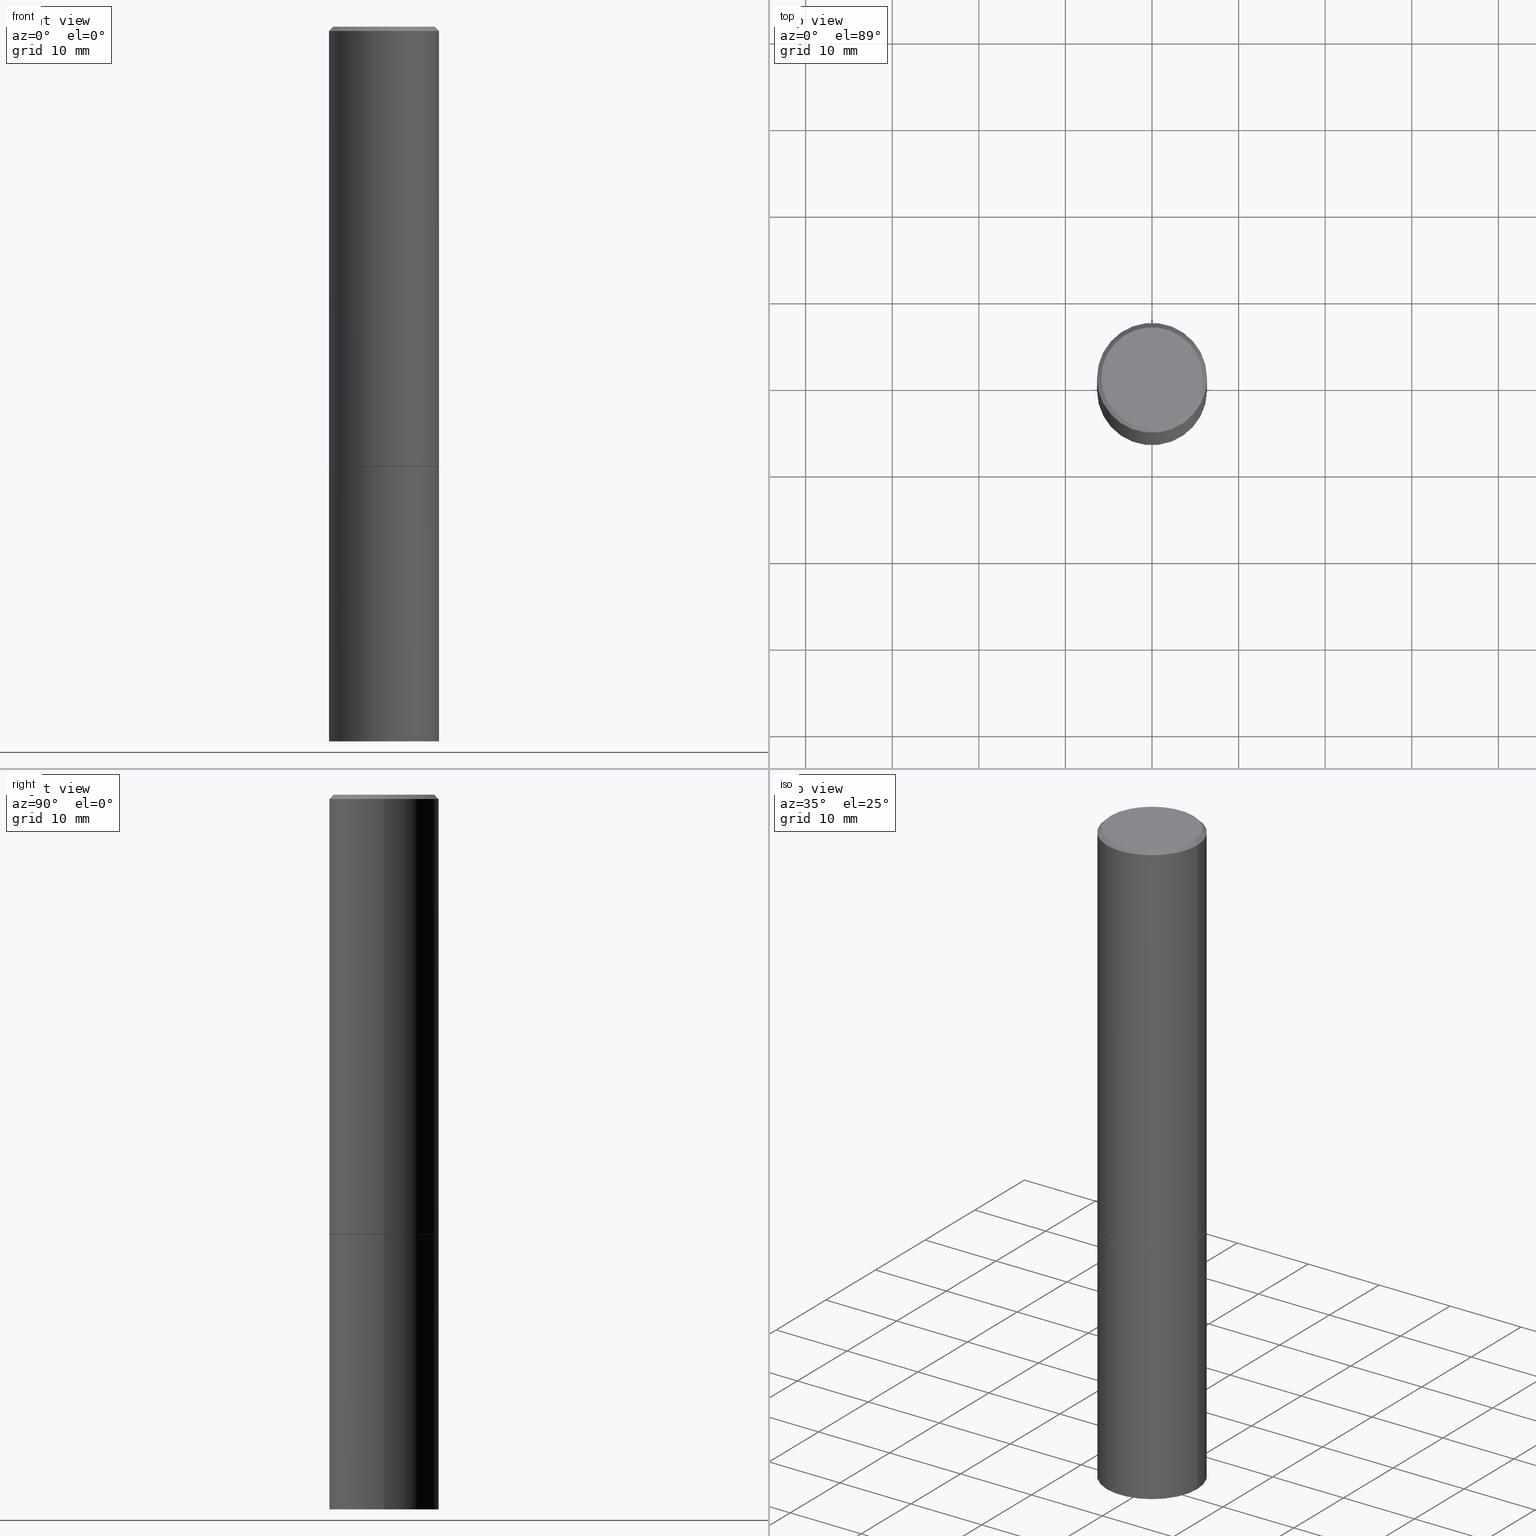
[diagram: canonical four-view strip — front | top / right | iso, engineering-drawing reading convention]
A machine part, canonical four-view strip (front | top / right | iso — engineering-drawing reading convention). The complete STEP part file that produces these views, byte-faithful:
ISO-10303-21;
HEADER;
FILE_DESCRIPTION (( 'STEP AP203' ),
    '1' );
FILE_NAME ('77342.STEP',
    '2024-05-03T15:04:56',
    ( '' ),
    ( '' ),
    'SwSTEP 2.0',
    'SolidWorks 2023',
    '' );
FILE_SCHEMA (( 'CONFIG_CONTROL_DESIGN' ));
ENDSEC;

DATA;
#1 = LOCAL_TIME ( 11, 4, 56.00000000000000000, #59 ) ;
#2 = ORIENTED_EDGE ( 'NONE', *, *, #110, .T. ) ;
#3 = CARTESIAN_POINT ( 'NONE',  ( 0.2499999999999998057, -1.784954126219744611E-15, -0.02000000000000006287 ) ) ;
#4 = CC_DESIGN_PERSON_AND_ORGANIZATION_ASSIGNMENT ( #97, #192, ( #108 ) ) ;
#5 = EDGE_LOOP ( 'NONE', ( #309, #128, #268, #63 ) ) ;
#6 = DIRECTION ( 'NONE',  ( 1.000000000000000000, -6.982962677686266711E-15, 0.000000000000000000 ) ) ;
#7 = DIRECTION ( 'NONE',  ( -1.000000000000000000, 6.982962677686265922E-15, -4.876176775795935793E-29 ) ) ;
#8 = CARTESIAN_POINT ( 'NONE',  ( 0.2499999999999999167, -1.745740669421566283E-15, 1.219044193948983668E-29 ) ) ;
#9 = CARTESIAN_POINT ( 'NONE',  ( 7.947773620101693940E-29, -1.134731435124022443E-14, -3.250000000000000000 ) ) ;
#10 = EDGE_LOOP ( 'NONE', ( #321, #339, #132, #264 ) ) ;
#11 = ORIENTED_EDGE ( 'NONE', *, *, #137, .T. ) ;
#12 = ADVANCED_FACE ( 'NONE', ( #255 ), #103, .F. ) ;
#13 = DIRECTION ( 'NONE',  ( 1.000000000000000000, -6.982962677686266711E-15, 4.876176775795935793E-29 ) ) ;
#14 =( NAMED_UNIT ( * ) PLANE_ANGLE_UNIT ( ) SI_UNIT ( $, .RADIAN. ) );
#15 = APPLICATION_PROTOCOL_DEFINITION ( 'international standard', 'config_control_design', 1994, #363 ) ;
#16 = CARTESIAN_POINT ( 'NONE',  ( 4.890937612370273194E-29, -6.982962677686291165E-15, -2.000000000000000000 ) ) ;
#17 = ADVANCED_FACE ( 'NONE', ( #133 ), #226, .T. ) ;
#18 = CC_DESIGN_PERSON_AND_ORGANIZATION_ASSIGNMENT ( #197, #163, ( #49 ) ) ;
#19 = AXIS2_PLACEMENT_3D ( 'NONE', #155, #130, #299 ) ;
#20 = CARTESIAN_POINT ( 'NONE',  ( 1.745740669421645958E-15, 0.2499999999999886480, -3.250000000000001332 ) ) ;
#21 = SECURITY_CLASSIFICATION_LEVEL ( 'unclassified' ) ;
#22 = EDGE_CURVE ( 'NONE', #348, #157, #161, .T. ) ;
#23 = ORGANIZATION ( 'UNSPECIFIED', 'UNSPECIFIED', '' ) ;
#24 = ORIENTED_EDGE ( 'NONE', *, *, #145, .T. ) ;
#25 = ADVANCED_BREP_SHAPE_REPRESENTATION ( '77342', ( #187, #186, #328 ), #47 ) ;
#26 = DIRECTION ( 'NONE',  ( 1.000000000000000000, -6.982962677686266711E-15, 0.000000000000000000 ) ) ;
#27 = CARTESIAN_POINT ( 'NONE',  ( 4.890937612370273194E-29, -6.982962677686291165E-15, -2.000000000000000000 ) ) ;
#28 = ADVANCED_FACE ( 'NONE', ( #338 ), #33, .T. ) ;
#29 = ADVANCED_FACE ( 'NONE', ( #124 ), #232, .T. ) ;
#30 = LOCAL_TIME ( 11, 4, 56.00000000000000000, #205 ) ;
#31 = ORIENTED_EDGE ( 'NONE', *, *, #215, .T. ) ;
#32 = ORIENTED_EDGE ( 'NONE', *, *, #213, .F. ) ;
#33 = CONICAL_SURFACE ( 'NONE', #229, 0.2489999999999999991, 0.7853981633974311816 ) ;
#34 = AXIS2_PLACEMENT_3D ( 'NONE', #51, #317, #293 ) ;
#35 = ORIENTED_EDGE ( 'NONE', *, *, #228, .T. ) ;
#36 = APPLICATION_PROTOCOL_DEFINITION ( 'international standard', 'config_control_design', 1994, #104 ) ;
#37 = DIRECTION ( 'NONE',  ( -2.445468806185136597E-29, 3.491481338843145583E-15, 1.000000000000000000 ) ) ;
#38 = EDGE_CURVE ( 'NONE', #352, #266, #307, .T. ) ;
#39 = EDGE_CURVE ( 'NONE', #92, #243, #166, .T. ) ;
#40 = ORIENTED_EDGE ( 'NONE', *, *, #145, .F. ) ;
#41 = COORDINATED_UNIVERSAL_TIME_OFFSET ( 5, 0, .BEHIND. ) ;
#42 = DIMENSIONAL_EXPONENTS ( 1.000000000000000000, 0.000000000000000000, 0.000000000000000000, 0.000000000000000000, 0.000000000000000000, 0.000000000000000000, 0.000000000000000000 ) ;
#43 = CIRCLE ( 'NONE', #211, 0.2499999999999998057 ) ;
#44 = DIRECTION ( 'NONE',  ( -1.000000000000000000, 6.982962677686266711E-15, 0.000000000000000000 ) ) ;
#45 = EDGE_LOOP ( 'NONE', ( #214, #86, #209, #48 ) ) ;
#46 = EDGE_LOOP ( 'NONE', ( #193, #120, #75, #298 ) ) ;
#47 =( GEOMETRIC_REPRESENTATION_CONTEXT ( 3 ) GLOBAL_UNCERTAINTY_ASSIGNED_CONTEXT ( ( #296 ) ) GLOBAL_UNIT_ASSIGNED_CONTEXT ( ( #330, #14, #136 ) ) REPRESENTATION_CONTEXT ( 'NONE', 'WORKASPACE' ) );
#48 = ORIENTED_EDGE ( 'NONE', *, *, #69, .F. ) ;
#49 = PRODUCT_DEFINITION_FORMATION_WITH_SPECIFIED_SOURCE ( 'ANY', '', #108, .NOT_KNOWN. ) ;
#50 = CARTESIAN_POINT ( 'NONE',  ( 0.2500000000000000555, -8.725211865769014047E-15, -1.998999999999999888 ) ) ;
#51 = CARTESIAN_POINT ( 'NONE',  ( 4.890937612370288923E-31, -6.982962677686312563E-17, -0.02000000000000006287 ) ) ;
#52 = VERTEX_POINT ( 'NONE', #169 ) ;
#53 = DIRECTION ( 'NONE',  ( -2.445468806185136597E-29, 3.491481338843145583E-15, 1.000000000000000000 ) ) ;
#54 = CARTESIAN_POINT ( 'NONE',  ( 4.888492143564087591E-29, -6.979471196347447369E-15, -1.998999999999999888 ) ) ;
#55 = EDGE_LOOP ( 'NONE', ( #32, #297 ) ) ;
#56 = ORIENTED_EDGE ( 'NONE', *, *, #158, .T. ) ;
#57 = AXIS2_PLACEMENT_3D ( 'NONE', #245, #270, #44 ) ;
#58 = AXIS2_PLACEMENT_3D ( 'NONE', #165, #280, #26 ) ;
#59 = COORDINATED_UNIVERSAL_TIME_OFFSET ( 5, 0, .BEHIND. ) ;
#60 = DIRECTION ( 'NONE',  ( -2.445468806185136597E-29, 3.491481338843145583E-15, 1.000000000000000000 ) ) ;
#61 = ORIENTED_EDGE ( 'NONE', *, *, #215, .F. ) ;
#62 = CARTESIAN_POINT ( 'NONE',  ( 7.306959900346538153E-46, -1.043240219266313067E-31, -2.987958743070287587E-17 ) ) ;
#63 = ORIENTED_EDGE ( 'NONE', *, *, #295, .F. ) ;
#64 = DIRECTION ( 'NONE',  ( 1.000000000000000000, -6.982962677686265922E-15, 4.876176775795935793E-29 ) ) ;
#65 = CC_DESIGN_APPROVAL ( #288, ( #71 ) ) ;
#66 = ADVANCED_FACE ( 'NONE', ( #73 ), #218, .T. ) ;
#67 = CARTESIAN_POINT ( 'NONE',  ( 0.2489999999999999991, -8.721720384430171040E-15, -2.000000000000000000 ) ) ;
#68 = CALENDAR_DATE ( 2024, 3, 5 ) ;
#69 = EDGE_CURVE ( 'NONE', #243, #266, #360, .T. ) ;
#70 = CIRCLE ( 'NONE', #351, 0.2500000000000000000 ) ;
#71 = PRODUCT_DEFINITION ( 'UNKNOWN', '', #49, #168 ) ;
#72 = CARTESIAN_POINT ( 'NONE',  ( -0.2500000000000000000, -7.388781675063007725E-15, -3.250000000000000000 ) ) ;
#73 = FACE_OUTER_BOUND ( 'NONE', #272, .T. ) ;
#74 = SECURITY_CLASSIFICATION ( '', '', #21 ) ;
#75 = ORIENTED_EDGE ( 'NONE', *, *, #273, .T. ) ;
#76 = APPROVAL ( #79, 'UNSPECIFIED' ) ;
#77 = DIRECTION ( 'NONE',  ( 1.000000000000000000, -6.982962677686266711E-15, 4.876176775795935793E-29 ) ) ;
#78 = VERTEX_POINT ( 'NONE', #72 ) ;
#79 = APPROVAL_STATUS ( 'not_yet_approved' ) ;
#80 = CARTESIAN_POINT ( 'NONE',  ( 4.890937612370273194E-29, -6.982962677686291165E-15, -2.000000000000000000 ) ) ;
#81 = VECTOR ( 'NONE', #300, 39.37007874015748143 ) ;
#82 = LINE ( 'NONE', #170, #203 ) ;
#83 = PERSON_AND_ORGANIZATION ( #331, #23 ) ;
#84 = FACE_OUTER_BOUND ( 'NONE', #284, .T. ) ;
#85 = FACE_OUTER_BOUND ( 'NONE', #177, .T. ) ;
#86 = ORIENTED_EDGE ( 'NONE', *, *, #336, .T. ) ;
#87 = CARTESIAN_POINT ( 'NONE',  ( 7.306959900346538153E-46, -1.043240219266313067E-31, -2.987958743070287587E-17 ) ) ;
#88 = CC_DESIGN_DATE_AND_TIME_ASSIGNMENT ( #199, #241, ( #74 ) ) ;
#89 = CIRCLE ( 'NONE', #340, 0.2299999999999998435 ) ;
#90 = CYLINDRICAL_SURFACE ( 'NONE', #173, 0.2499999999999999167 ) ;
#91 = CARTESIAN_POINT ( 'NONE',  ( 1.745740669421615390E-15, 0.2499999999999930334, -2.000000000000000888 ) ) ;
#92 = VERTEX_POINT ( 'NONE', #200 ) ;
#93 = VERTEX_POINT ( 'NONE', #282 ) ;
#94 = DIRECTION ( 'NONE',  ( 1.000000000000000000, -6.982962677686266711E-15, 0.000000000000000000 ) ) ;
#95 = DIRECTION ( 'NONE',  ( 2.438088387897960049E-29, -3.491481338843145188E-15, -1.000000000000000000 ) ) ;
#96 = DIRECTION ( 'NONE',  ( 1.000000000000000000, 0.000000000000000000, 0.000000000000000000 ) ) ;
#97 = PERSON_AND_ORGANIZATION ( #331, #23 ) ;
#98 = DIRECTION ( 'NONE',  ( -2.445468806185136597E-29, 3.491481338843145583E-15, 1.000000000000000000 ) ) ;
#99 = LOCAL_TIME ( 11, 4, 56.00000000000000000, #41 ) ;
#100 = LENGTH_MEASURE_WITH_UNIT ( LENGTH_MEASURE( 0.02539999999999999897 ), #224 );
#101 = APPROVAL_ROLE ( '' ) ;
#102 = APPROVAL_DATE_TIME ( #194, #288 ) ;
#103 = PLANE ( 'NONE',  #121 ) ;
#104 = APPLICATION_CONTEXT ( 'configuration controlled 3d designs of mechanical parts and assemblies' ) ;
#105 = DIRECTION ( 'NONE',  ( -0.7071067811865353603, 7.493145998870309984E-15, 0.7071067811865595631 ) ) ;
#106 = CC_DESIGN_APPROVAL ( #76, ( #49 ) ) ;
#107 = DIRECTION ( 'NONE',  ( 2.438088387897960049E-29, -3.491481338843145188E-15, -1.000000000000000000 ) ) ;
#108 = PRODUCT ( '77342', '77342', '', ( #357 ) ) ;
#109 = PERSON_AND_ORGANIZATION_ROLE ( 'design_supplier' ) ;
#110 = EDGE_CURVE ( 'NONE', #52, #294, #82, .T. ) ;
#111 = DIRECTION ( 'NONE',  ( 0.7071067811865353603, -2.468850131082130054E-15, 0.7071067811865595631 ) ) ;
#112 = ADVANCED_FACE ( 'NONE', ( #147 ), #341, .T. ) ;
#113 = PLANE ( 'NONE',  #265 ) ;
#114 = AXIS2_PLACEMENT_3D ( 'NONE', #248, #189, #94 ) ;
#115 = DIRECTION ( 'NONE',  ( 1.000000000000000000, -6.982962677686262766E-15, 0.000000000000000000 ) ) ;
#116 = CC_DESIGN_PERSON_AND_ORGANIZATION_ASSIGNMENT ( #237, #235, ( #71 ) ) ;
#117 = DIRECTION ( 'NONE',  ( -2.445468806185136597E-29, 3.491481338843145583E-15, 1.000000000000000000 ) ) ;
#118 = AXIS2_PLACEMENT_3D ( 'NONE', #305, #98, #329 ) ;
#119 = DIRECTION ( 'NONE',  ( 1.000000000000000000, -6.982962677686266711E-15, 4.875813741439103137E-29 ) ) ;
#120 = ORIENTED_EDGE ( 'NONE', *, *, #206, .F. ) ;
#121 = AXIS2_PLACEMENT_3D ( 'NONE', #16, #196, #64 ) ;
#122 = AXIS2_PLACEMENT_3D ( 'NONE', #54, #176, #201 ) ;
#123 = EDGE_LOOP ( 'NONE', ( #61, #2, #56, #220 ) ) ;
#124 = FACE_OUTER_BOUND ( 'NONE', #123, .T. ) ;
#125 = APPROVAL_STATUS ( 'not_yet_approved' ) ;
#126 = DIRECTION ( 'NONE',  ( -2.445468806185136877E-29, 3.491481338843145188E-15, 1.000000000000000000 ) ) ;
#127 = ORIENTED_EDGE ( 'NONE', *, *, #39, .T. ) ;
#128 = ORIENTED_EDGE ( 'NONE', *, *, #225, .T. ) ;
#129 = CONICAL_SURFACE ( 'NONE', #34, 0.2499999999999998057, 0.7853981633974463916 ) ;
#130 = DIRECTION ( 'NONE',  ( -2.445468806185136597E-29, 3.491481338843145583E-15, 1.000000000000000000 ) ) ;
#131 = ORIENTED_EDGE ( 'NONE', *, *, #206, .T. ) ;
#132 = ORIENTED_EDGE ( 'NONE', *, *, #295, .T. ) ;
#133 = FACE_OUTER_BOUND ( 'NONE', #55, .T. ) ;
#134 = PERSON_AND_ORGANIZATION_ROLE ( 'classification_officer' ) ;
#135 = AXIS2_PLACEMENT_3D ( 'NONE', #301, #276, #140 ) ;
#136 =( NAMED_UNIT ( * ) SI_UNIT ( $, .STERADIAN. ) SOLID_ANGLE_UNIT ( ) );
#137 = EDGE_CURVE ( 'NONE', #78, #157, #146, .T. ) ;
#138 = COORDINATED_UNIVERSAL_TIME_OFFSET ( 5, 0, .BEHIND. ) ;
#139 = DIRECTION ( 'NONE',  ( -1.000000000000000000, 6.982962677686265922E-15, -4.876176775795935793E-29 ) ) ;
#140 = DIRECTION ( 'NONE',  ( 1.000000000000000000, -6.982962677686265133E-15, 0.000000000000000000 ) ) ;
#141 = CIRCLE ( 'NONE', #326, 0.2500000000000000000 ) ;
#142 = FACE_OUTER_BOUND ( 'NONE', #184, .T. ) ;
#143 = VECTOR ( 'NONE', #306, 39.37007874015748143 ) ;
#144 = DIRECTION ( 'NONE',  ( 1.000000000000000000, -6.982962677686266711E-15, 0.000000000000000000 ) ) ;
#145 = EDGE_CURVE ( 'NONE', #157, #348, #361, .T. ) ;
#146 = LINE ( 'NONE', #207, #320 ) ;
#147 = FACE_OUTER_BOUND ( 'NONE', #350, .T. ) ;
#148 = DIRECTION ( 'NONE',  ( -2.445468806185136877E-29, 3.491481338843145188E-15, 1.000000000000000000 ) ) ;
#149 = VERTEX_POINT ( 'NONE', #364 ) ;
#150 = CC_DESIGN_SECURITY_CLASSIFICATION ( #74, ( #49 ) ) ;
#151 = CC_DESIGN_DATE_AND_TIME_ASSIGNMENT ( #208, #343, ( #71 ) ) ;
#152 = DIRECTION ( 'NONE',  ( 1.000000000000000000, -6.982962677686262766E-15, 0.000000000000000000 ) ) ;
#153 = ORIENTED_EDGE ( 'NONE', *, *, #228, .F. ) ;
#154 = ORIENTED_EDGE ( 'NONE', *, *, #336, .F. ) ;
#155 = CARTESIAN_POINT ( 'NONE',  ( 4.890937612370288923E-31, -6.982962677686312563E-17, -0.02000000000000006287 ) ) ;
#156 = ADVANCED_FACE ( 'NONE', ( #314 ), #174, .T. ) ;
#157 = VERTEX_POINT ( 'NONE', #346 ) ;
#158 = EDGE_CURVE ( 'NONE', #294, #149, #43, .T. ) ;
#159 = DIRECTION ( 'NONE',  ( 1.000000000000000000, -6.982962677686267499E-15, 4.876176775795936353E-29 ) ) ;
#160 = APPROVAL_STATUS ( 'not_yet_approved' ) ;
#161 = CIRCLE ( 'NONE', #118, 0.2500000000000000000 ) ;
#162 = LOCAL_TIME ( 11, 4, 56.00000000000000000, #332 ) ;
#163 = PERSON_AND_ORGANIZATION_ROLE ( 'creator' ) ;
#164 = LINE ( 'NONE', #316, #143 ) ;
#165 = CARTESIAN_POINT ( 'NONE',  ( 4.890937612370273194E-29, -6.982962677686291165E-15, -2.000000000000000000 ) ) ;
#166 = LINE ( 'NONE', #204, #275 ) ;
#167 = APPROVAL_PERSON_ORGANIZATION ( #83, #256, #179 ) ;
#168 = DESIGN_CONTEXT ( 'detailed design', #363, 'design' ) ;
#169 = CARTESIAN_POINT ( 'NONE',  ( 0.2299999999999998435, -1.681434332853597631E-15, -2.987958743069138192E-17 ) ) ;
#170 = CARTESIAN_POINT ( 'NONE',  ( 0.2499999999999998057, -1.784954126219744611E-15, -0.02000000000000006287 ) ) ;
#171 = CALENDAR_DATE ( 2024, 3, 5 ) ;
#172 = DIRECTION ( 'NONE',  ( 2.438088387897960049E-29, -3.491481338843145188E-15, -1.000000000000000000 ) ) ;
#173 = AXIS2_PLACEMENT_3D ( 'NONE', #191, #37, #159 ) ;
#174 = CYLINDRICAL_SURFACE ( 'NONE', #219, 0.2499999999999999167 ) ;
#175 = CARTESIAN_POINT ( 'NONE',  ( 4.890937612370288923E-31, -6.982962677686312563E-17, -0.02000000000000006287 ) ) ;
#176 = DIRECTION ( 'NONE',  ( -2.445468806185136597E-29, 3.491481338843145583E-15, 1.000000000000000000 ) ) ;
#177 = EDGE_LOOP ( 'NONE', ( #217, #24 ) ) ;
#178 = ADVANCED_FACE ( 'NONE', ( #238 ), #129, .T. ) ;
#179 = APPROVAL_ROLE ( '' ) ;
#180 = EDGE_LOOP ( 'NONE', ( #153, #154 ) ) ;
#181 = APPROVAL_PERSON_ORGANIZATION ( #251, #288, #101 ) ;
#182 = DIRECTION ( 'NONE',  ( -2.445468806185136597E-29, 3.491481338843145583E-15, 1.000000000000000000 ) ) ;
#183 = LINE ( 'NONE', #249, #198 ) ;
#184 = EDGE_LOOP ( 'NONE', ( #131, #31 ) ) ;
#185 = DIRECTION ( 'NONE',  ( 1.000000000000000000, -6.982962677686266711E-15, 4.875813741439103137E-29 ) ) ;
#186 = MANIFOLD_SOLID_BREP ( 'Body-Move/Copy2[2]', #302 ) ;
#187 = MANIFOLD_SOLID_BREP ( 'Body-Move/Copy2[1]', #252 ) ;
#188 = DATE_AND_TIME ( #292, #1 ) ;
#189 = DIRECTION ( 'NONE',  ( -2.445468806185136597E-29, 3.491481338843145583E-15, 1.000000000000000000 ) ) ;
#190 = CIRCLE ( 'NONE', #114, 0.2489999999999999991 ) ;
#191 = CARTESIAN_POINT ( 'NONE',  ( 0.000000000000000000, 0.000000000000000000, 0.000000000000000000 ) ) ;
#192 = PERSON_AND_ORGANIZATION_ROLE ( 'design_owner' ) ;
#193 = ORIENTED_EDGE ( 'NONE', *, *, #110, .F. ) ;
#194 = DATE_AND_TIME ( #68, #162 ) ;
#195 = DATE_AND_TIME ( #259, #99 ) ;
#196 = DIRECTION ( 'NONE',  ( -2.438088387897960049E-29, 3.491481338843145188E-15, 1.000000000000000000 ) ) ;
#197 = PERSON_AND_ORGANIZATION ( #331, #23 ) ;
#198 = VECTOR ( 'NONE', #126, 39.37007874015748143 ) ;
#199 = DATE_AND_TIME ( #333, #313 ) ;
#200 = CARTESIAN_POINT ( 'NONE',  ( -0.2489999999999999991, -5.208412811295418518E-15, -2.000000000000000000 ) ) ;
#201 = DIRECTION ( 'NONE',  ( 1.000000000000000000, -6.982962677686265133E-15, 0.000000000000000000 ) ) ;
#202 = ORIENTED_EDGE ( 'NONE', *, *, #38, .F. ) ;
#203 = VECTOR ( 'NONE', #310, 39.37007874015748143 ) ;
#204 = CARTESIAN_POINT ( 'NONE',  ( -0.2489999999999999991, -5.213711265643641709E-15, -2.000000000000000000 ) ) ;
#205 = COORDINATED_UNIVERSAL_TIME_OFFSET ( 5, 0, .BEHIND. ) ;
#206 = EDGE_CURVE ( 'NONE', #93, #52, #262, .T. ) ;
#207 = CARTESIAN_POINT ( 'NONE',  ( -0.2500000000000000000, 1.776356839400250465E-15, -1.229733772563726445E-29 ) ) ;
#208 = DATE_AND_TIME ( #171, #30 ) ;
#209 = ORIENTED_EDGE ( 'NONE', *, *, #38, .T. ) ;
#210 = DIRECTION ( 'NONE',  ( -2.445468806185136597E-29, 3.491481338843145583E-15, 1.000000000000000000 ) ) ;
#211 = AXIS2_PLACEMENT_3D ( 'NONE', #175, #234, #289 ) ;
#212 = DIRECTION ( 'NONE',  ( -2.445468806185136597E-29, 3.491481338843145583E-15, 1.000000000000000000 ) ) ;
#213 = EDGE_CURVE ( 'NONE', #269, #78, #70, .T. ) ;
#214 = ORIENTED_EDGE ( 'NONE', *, *, #39, .F. ) ;
#215 = EDGE_CURVE ( 'NONE', #52, #93, #89, .T. ) ;
#216 = CYLINDRICAL_SURFACE ( 'NONE', #233, 0.2500000000000000000 ) ;
#217 = ORIENTED_EDGE ( 'NONE', *, *, #22, .T. ) ;
#218 = CONICAL_SURFACE ( 'NONE', #58, 0.2489999999999999991, 0.7853981633974311816 ) ;
#219 = AXIS2_PLACEMENT_3D ( 'NONE', #285, #117, #239 ) ;
#220 = ORIENTED_EDGE ( 'NONE', *, *, #273, .F. ) ;
#221 = CARTESIAN_POINT ( 'NONE',  ( 7.947773620101693940E-29, -1.134731435124022443E-14, -3.250000000000000000 ) ) ;
#222 = CARTESIAN_POINT ( 'NONE',  ( 0.2489999999999999991, -8.721720384430171040E-15, -2.000000000000000000 ) ) ;
#223 = VECTOR ( 'NONE', #148, 39.37007874015748143 ) ;
#224 =( LENGTH_UNIT ( ) NAMED_UNIT ( * ) SI_UNIT ( $, .METRE. ) );
#225 = EDGE_CURVE ( 'NONE', #243, #149, #246, .T. ) ;
#226 = PLANE ( 'NONE',  #278 ) ;
#227 = EDGE_CURVE ( 'NONE', #78, #269, #141, .T. ) ;
#228 = EDGE_CURVE ( 'NONE', #352, #92, #257, .T. ) ;
#229 = AXIS2_PLACEMENT_3D ( 'NONE', #27, #182, #6 ) ;
#230 = PRODUCT_DEFINITION_SHAPE ( 'NONE', 'NONE',  #71 ) ;
#231 = ORIENTED_EDGE ( 'NONE', *, *, #254, .F. ) ;
#232 = CONICAL_SURFACE ( 'NONE', #57, 0.2499999999999998057, 0.7853981633974463916 ) ;
#233 = AXIS2_PLACEMENT_3D ( 'NONE', #319, #60, #13 ) ;
#234 = DIRECTION ( 'NONE',  ( -2.445468806185136597E-29, 3.491481338843145583E-15, 1.000000000000000000 ) ) ;
#235 = PERSON_AND_ORGANIZATION_ROLE ( 'creator' ) ;
#236 = CARTESIAN_POINT ( 'NONE',  ( 0.000000000000000000, 0.000000000000000000, 0.000000000000000000 ) ) ;
#237 = PERSON_AND_ORGANIZATION ( #331, #23 ) ;
#238 = FACE_OUTER_BOUND ( 'NONE', #46, .T. ) ;
#239 = DIRECTION ( 'NONE',  ( 1.000000000000000000, -6.982962677686267499E-15, 4.876176775795936353E-29 ) ) ;
#240 = AXIS2_PLACEMENT_3D ( 'NONE', #91, #95, #7 ) ;
#241 = DATE_TIME_ROLE ( 'classification_date' ) ;
#242 = LINE ( 'NONE', #8, #81 ) ;
#243 = VERTEX_POINT ( 'NONE', #286 ) ;
#244 = ORIENTED_EDGE ( 'NONE', *, *, #355, .F. ) ;
#245 = CARTESIAN_POINT ( 'NONE',  ( 4.890937612370288923E-31, -6.982962677686312563E-17, -0.02000000000000006287 ) ) ;
#246 = LINE ( 'NONE', #353, #223 ) ;
#247 = CIRCLE ( 'NONE', #122, 0.2500000000000000555 ) ;
#248 = CARTESIAN_POINT ( 'NONE',  ( 4.890937612370273194E-29, -6.982962677686291165E-15, -2.000000000000000000 ) ) ;
#249 = CARTESIAN_POINT ( 'NONE',  ( 0.2500000000000000000, -1.745740669421566678E-15, 1.219044193948983948E-29 ) ) ;
#250 = CARTESIAN_POINT ( 'NONE',  ( 0.2500000000000000000, -1.309305502066178953E-14, -3.250000000000000000 ) ) ;
#251 = PERSON_AND_ORGANIZATION ( #331, #23 ) ;
#252 = CLOSED_SHELL ( 'NONE', ( #112, #17, #267, #349 ) ) ;
#253 = APPROVAL_DATE_TIME ( #195, #76 ) ;
#254 = EDGE_CURVE ( 'NONE', #266, #243, #247, .T. ) ;
#255 = FACE_OUTER_BOUND ( 'NONE', #180, .T. ) ;
#256 = APPROVAL ( #125, 'UNSPECIFIED' ) ;
#257 = CIRCLE ( 'NONE', #303, 0.2489999999999999991 ) ;
#258 = CARTESIAN_POINT ( 'NONE',  ( 1.606081415867840081E-15, 0.2299999999999998435, -8.179805016492743936E-16 ) ) ;
#259 = CALENDAR_DATE ( 2024, 3, 5 ) ;
#260 = ORIENTED_EDGE ( 'NONE', *, *, #213, .T. ) ;
#261 = ADVANCED_FACE ( 'NONE', ( #142 ), #113, .F. ) ;
#262 = CIRCLE ( 'NONE', #345, 0.2299999999999998435 ) ;
#263 = DIRECTION ( 'NONE',  ( -2.445468806185136877E-29, 3.491481338843145188E-15, 1.000000000000000000 ) ) ;
#264 = ORIENTED_EDGE ( 'NONE', *, *, #311, .F. ) ;
#265 = AXIS2_PLACEMENT_3D ( 'NONE', #258, #172, #342 ) ;
#266 = VERTEX_POINT ( 'NONE', #50 ) ;
#267 = ADVANCED_FACE ( 'NONE', ( #85 ), #347, .F. ) ;
#268 = ORIENTED_EDGE ( 'NONE', *, *, #158, .F. ) ;
#269 = VERTEX_POINT ( 'NONE', #250 ) ;
#270 = DIRECTION ( 'NONE',  ( 2.445468806185136597E-29, -3.491481338843145583E-15, -1.000000000000000000 ) ) ;
#271 = CARTESIAN_POINT ( 'NONE',  ( 0.2500000000000000000, -8.728703347107857054E-15, -2.000000000000000000 ) ) ;
#272 = EDGE_LOOP ( 'NONE', ( #35, #127, #231, #202 ) ) ;
#273 = EDGE_CURVE ( 'NONE', #93, #149, #164, .T. ) ;
#274 = SHAPE_DEFINITION_REPRESENTATION ( #230, #25 ) ;
#275 = VECTOR ( 'NONE', #105, 39.37007874015748854 ) ;
#276 = DIRECTION ( 'NONE',  ( -2.445468806185136597E-29, 3.491481338843145583E-15, 1.000000000000000000 ) ) ;
#277 = PERSON_AND_ORGANIZATION ( #331, #23 ) ;
#278 = AXIS2_PLACEMENT_3D ( 'NONE', #20, #107, #139 ) ;
#279 = APPROVAL_PERSON_ORGANIZATION ( #283, #76, #334 ) ;
#280 = DIRECTION ( 'NONE',  ( -2.445468806185136597E-29, 3.491481338843145583E-15, 1.000000000000000000 ) ) ;
#281 = AXIS2_PLACEMENT_3D ( 'NONE', #236, #53, #77 ) ;
#282 = CARTESIAN_POINT ( 'NONE',  ( -0.2299999999999998435, 1.640996229256271139E-15, -2.987958743071423423E-17 ) ) ;
#283 = PERSON_AND_ORGANIZATION ( #331, #23 ) ;
#284 = EDGE_LOOP ( 'NONE', ( #323, #287, #366, #40 ) ) ;
#285 = CARTESIAN_POINT ( 'NONE',  ( 0.000000000000000000, 0.000000000000000000, 0.000000000000000000 ) ) ;
#286 = CARTESIAN_POINT ( 'NONE',  ( -0.2500000000000000555, -1.748293572161903489E-15, -1.998999999999999888 ) ) ;
#287 = ORIENTED_EDGE ( 'NONE', *, *, #227, .T. ) ;
#288 = APPROVAL ( #160, 'UNSPECIFIED' ) ;
#289 = DIRECTION ( 'NONE',  ( 1.000000000000000000, -6.982962677686266711E-15, 0.000000000000000000 ) ) ;
#290 = DIRECTION ( 'NONE',  ( -2.445468806185136597E-29, 3.491481338843145583E-15, 1.000000000000000000 ) ) ;
#291 = VECTOR ( 'NONE', #111, 39.37007874015748854 ) ;
#292 = CALENDAR_DATE ( 2024, 3, 5 ) ;
#293 = DIRECTION ( 'NONE',  ( -1.000000000000000000, 6.982962677686266711E-15, 0.000000000000000000 ) ) ;
#294 = VERTEX_POINT ( 'NONE', #3 ) ;
#295 = EDGE_CURVE ( 'NONE', #266, #294, #242, .T. ) ;
#296 = UNCERTAINTY_MEASURE_WITH_UNIT (LENGTH_MEASURE( 1.000000000000000082E-05 ), #330, 'distance_accuracy_value', 'NONE');
#297 = ORIENTED_EDGE ( 'NONE', *, *, #227, .F. ) ;
#298 = ORIENTED_EDGE ( 'NONE', *, *, #311, .T. ) ;
#299 = DIRECTION ( 'NONE',  ( 1.000000000000000000, -6.982962677686266711E-15, 0.000000000000000000 ) ) ;
#300 = DIRECTION ( 'NONE',  ( -2.445468806185136877E-29, 3.491481338843145188E-15, 1.000000000000000000 ) ) ;
#301 = CARTESIAN_POINT ( 'NONE',  ( 4.888492143564087591E-29, -6.979471196347447369E-15, -1.998999999999999888 ) ) ;
#302 = CLOSED_SHELL ( 'NONE', ( #66, #362, #29, #178, #156, #28, #12, #261 ) ) ;
#303 = AXIS2_PLACEMENT_3D ( 'NONE', #80, #212, #315 ) ;
#304 = PRODUCT_RELATED_PRODUCT_CATEGORY ( 'detail', '', ( #108 ) ) ;
#305 = CARTESIAN_POINT ( 'NONE',  ( 4.890937612370273194E-29, -6.982962677686291165E-15, -2.000000000000000000 ) ) ;
#306 = DIRECTION ( 'NONE',  ( -0.7071067811865461294, 2.468850131082242072E-15, -0.7071067811865489050 ) ) ;
#307 = LINE ( 'NONE', #67, #291 ) ;
#308 = CC_DESIGN_APPROVAL ( #256, ( #74 ) ) ;
#309 = ORIENTED_EDGE ( 'NONE', *, *, #254, .T. ) ;
#310 = DIRECTION ( 'NONE',  ( 0.7071067811865461294, -7.319954787623251312E-15, -0.7071067811865489050 ) ) ;
#311 = EDGE_CURVE ( 'NONE', #149, #294, #335, .T. ) ;
#312 = CARTESIAN_POINT ( 'NONE',  ( 4.890937612370273194E-29, -6.982962677686291165E-15, -2.000000000000000000 ) ) ;
#313 = LOCAL_TIME ( 11, 4, 56.00000000000000000, #138 ) ;
#314 = FACE_OUTER_BOUND ( 'NONE', #10, .T. ) ;
#315 = DIRECTION ( 'NONE',  ( 1.000000000000000000, -6.982962677686266711E-15, 0.000000000000000000 ) ) ;
#316 = CARTESIAN_POINT ( 'NONE',  ( -0.2499999999999998057, 1.675911042644702196E-15, -0.02000000000000006287 ) ) ;
#317 = DIRECTION ( 'NONE',  ( 2.445468806185136597E-29, -3.491481338843145583E-15, -1.000000000000000000 ) ) ;
#318 = CC_DESIGN_PERSON_AND_ORGANIZATION_ASSIGNMENT ( #277, #109, ( #49 ) ) ;
#319 = CARTESIAN_POINT ( 'NONE',  ( 0.000000000000000000, 0.000000000000000000, 0.000000000000000000 ) ) ;
#320 = VECTOR ( 'NONE', #263, 39.37007874015748143 ) ;
#321 = ORIENTED_EDGE ( 'NONE', *, *, #225, .F. ) ;
#322 = DIRECTION ( 'NONE',  ( -2.445468806185136597E-29, 3.491481338843145583E-15, 1.000000000000000000 ) ) ;
#323 = ORIENTED_EDGE ( 'NONE', *, *, #137, .F. ) ;
#324 = CARTESIAN_POINT ( 'NONE',  ( 0.000000000000000000, 0.000000000000000000, 0.000000000000000000 ) ) ;
#325 = FACE_OUTER_BOUND ( 'NONE', #5, .T. ) ;
#326 = AXIS2_PLACEMENT_3D ( 'NONE', #221, #322, #115 ) ;
#327 = CC_DESIGN_PERSON_AND_ORGANIZATION_ASSIGNMENT ( #337, #134, ( #74 ) ) ;
#328 = AXIS2_PLACEMENT_3D ( 'NONE', #324, #354, #96 ) ;
#329 = DIRECTION ( 'NONE',  ( 1.000000000000000000, -6.982962677686266711E-15, 0.000000000000000000 ) ) ;
#330 =( CONVERSION_BASED_UNIT ( 'INCH', #100 ) LENGTH_UNIT ( ) NAMED_UNIT ( #42 ) );
#331 = PERSON ( 'UNSPECIFIED', 'UNSPECIFIED', 'UNSPECIFIED', ('UNSPECIFIED'), ('UNSPECIFIED'), ('UNSPECIFIED') ) ;
#332 = COORDINATED_UNIVERSAL_TIME_OFFSET ( 5, 0, .BEHIND. ) ;
#333 = CALENDAR_DATE ( 2024, 3, 5 ) ;
#334 = APPROVAL_ROLE ( '' ) ;
#335 = CIRCLE ( 'NONE', #19, 0.2499999999999998057 ) ;
#336 = EDGE_CURVE ( 'NONE', #92, #352, #190, .T. ) ;
#337 = PERSON_AND_ORGANIZATION ( #331, #23 ) ;
#338 = FACE_OUTER_BOUND ( 'NONE', #45, .T. ) ;
#339 = ORIENTED_EDGE ( 'NONE', *, *, #69, .T. ) ;
#340 = AXIS2_PLACEMENT_3D ( 'NONE', #62, #290, #185 ) ;
#341 = CYLINDRICAL_SURFACE ( 'NONE', #281, 0.2500000000000000000 ) ;
#342 = DIRECTION ( 'NONE',  ( -1.000000000000000000, 6.982962677686265922E-15, -4.876176775795935793E-29 ) ) ;
#343 = DATE_TIME_ROLE ( 'creation_date' ) ;
#344 = DIRECTION ( 'NONE',  ( -2.445468806185136597E-29, 3.491481338843145583E-15, 1.000000000000000000 ) ) ;
#345 = AXIS2_PLACEMENT_3D ( 'NONE', #87, #365, #119 ) ;
#346 = CARTESIAN_POINT ( 'NONE',  ( -0.2500000000000000000, -7.388781675063007725E-15, -2.000000000000000000 ) ) ;
#347 = PLANE ( 'NONE',  #240 ) ;
#348 = VERTEX_POINT ( 'NONE', #271 ) ;
#349 = ADVANCED_FACE ( 'NONE', ( #84 ), #216, .T. ) ;
#350 = EDGE_LOOP ( 'NONE', ( #260, #11, #359, #244 ) ) ;
#351 = AXIS2_PLACEMENT_3D ( 'NONE', #9, #344, #152 ) ;
#352 = VERTEX_POINT ( 'NONE', #222 ) ;
#353 = CARTESIAN_POINT ( 'NONE',  ( -0.2499999999999999167, 1.776356839400249873E-15, -1.229733772563726165E-29 ) ) ;
#354 = DIRECTION ( 'NONE',  ( 0.000000000000000000, 0.000000000000000000, 1.000000000000000000 ) ) ;
#355 = EDGE_CURVE ( 'NONE', #269, #348, #183, .T. ) ;
#356 = APPROVAL_DATE_TIME ( #188, #256 ) ;
#357 = MECHANICAL_CONTEXT ( 'NONE', #104, 'mechanical' ) ;
#358 = AXIS2_PLACEMENT_3D ( 'NONE', #312, #210, #144 ) ;
#359 = ORIENTED_EDGE ( 'NONE', *, *, #22, .F. ) ;
#360 = CIRCLE ( 'NONE', #135, 0.2500000000000000555 ) ;
#361 = CIRCLE ( 'NONE', #358, 0.2500000000000000000 ) ;
#362 = ADVANCED_FACE ( 'NONE', ( #325 ), #90, .T. ) ;
#363 = APPLICATION_CONTEXT ( 'configuration controlled 3d designs of mechanical parts and assemblies' ) ;
#364 = CARTESIAN_POINT ( 'NONE',  ( -0.2499999999999998057, 1.675911042644702196E-15, -0.02000000000000006287 ) ) ;
#365 = DIRECTION ( 'NONE',  ( -2.445468806185136597E-29, 3.491481338843145583E-15, 1.000000000000000000 ) ) ;
#366 = ORIENTED_EDGE ( 'NONE', *, *, #355, .T. ) ;
ENDSEC;
END-ISO-10303-21;
